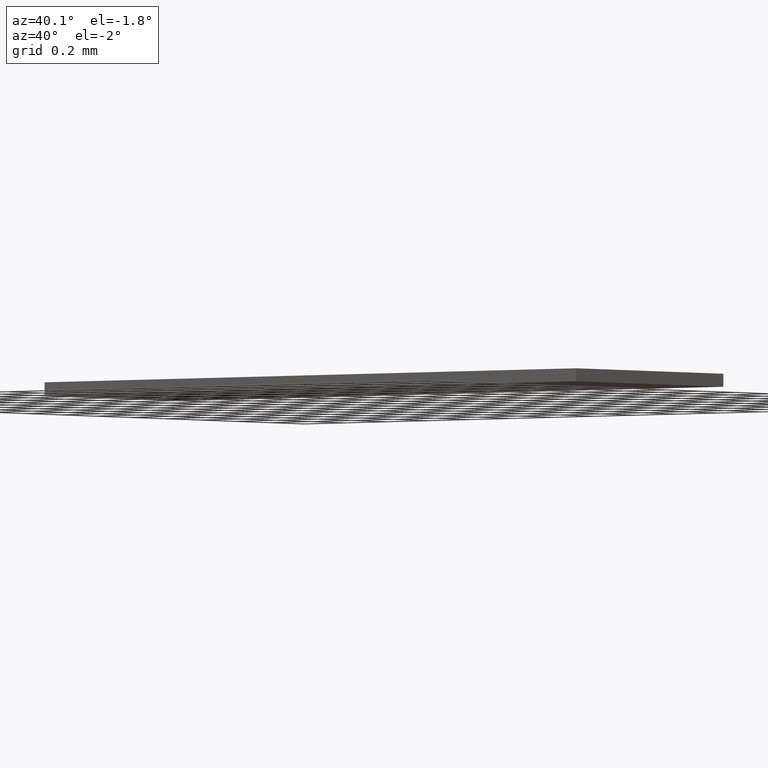
[diagram: clean part render]
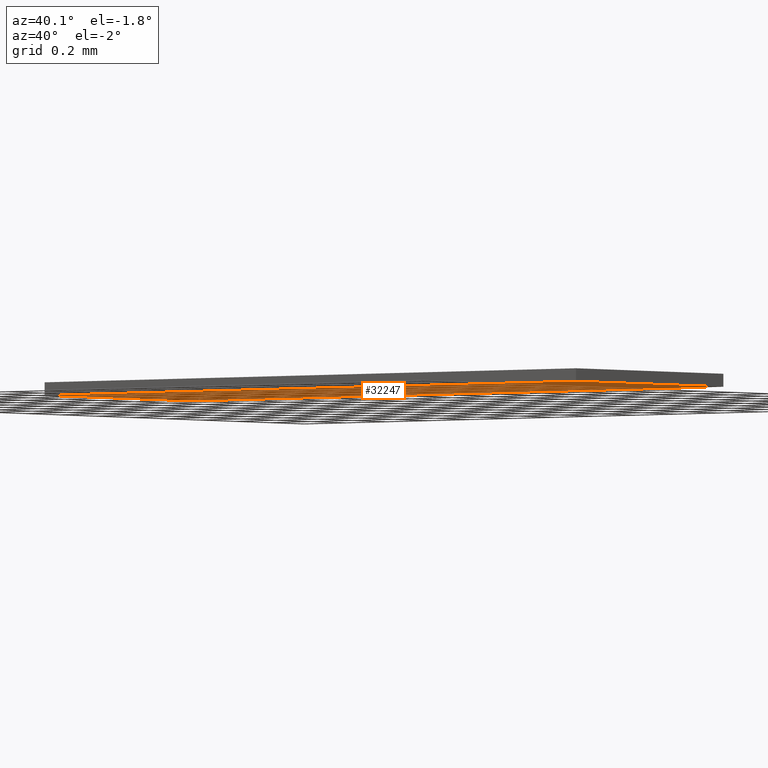
[diagram: same view with one face highlighted and labeled with its STEP entity id]
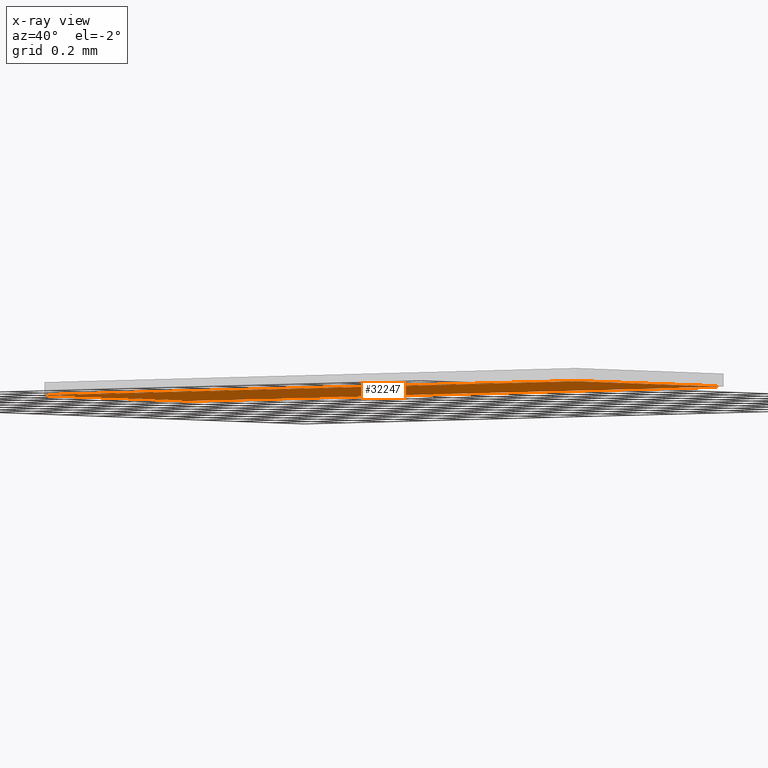
[diagram: x-ray of the same camera — body ghosted, the highlighted face saturated]
A machine part, auxiliary view. The second image highlights one B-rep face of the part: STEP entity #32247.
The next image is the same camera in x-ray: the body ghosted, the highlighted face saturated — about 0% of this face is hidden behind the body in this view.
In plain terms, the highlighted planar face has unit normal (0, 0, 1).
Its self-contained STEP definition (entity closure, byte-faithful):
#30612=CARTESIAN_POINT('',(0.0,0.0,0.0));
#30613=VERTEX_POINT('',#30612);
#30620=CARTESIAN_POINT('',(0.100984251968504,0.0,0.0));
#30621=VERTEX_POINT('',#30620);
#30622=CARTESIAN_POINT('',(0.0,0.0,0.0));
#30623=DIRECTION('',(1.0,0.0,0.0));
#30624=VECTOR('',#30623,0.100984251968504);
#30625=LINE('',#30622,#30624);
#30626=EDGE_CURVE('',#30613,#30621,#30625,.T.);
#30643=CARTESIAN_POINT('',(1.298470E-016,0.033267716535433,0.0));
#30644=VERTEX_POINT('',#30643);
#30651=CARTESIAN_POINT('',(1.298470E-016,0.033267716535433,0.0));
#30652=DIRECTION('',(0.0,-1.0,0.0));
#30653=VECTOR('',#30652,0.033267716535433);
#30654=LINE('',#30651,#30653);
#30655=EDGE_CURVE('',#30644,#30613,#30654,.T.);
#32201=CARTESIAN_POINT('',(0.100984251968504,0.033267716535433,0.0));
#32202=VERTEX_POINT('',#32201);
#32209=CARTESIAN_POINT('',(0.100984251968504,0.033267716535433,0.0));
#32210=DIRECTION('',(-1.0,0.0,0.0));
#32211=VECTOR('',#32210,0.100984251968504);
#32212=LINE('',#32209,#32211);
#32213=EDGE_CURVE('',#32202,#30644,#32212,.T.);
#32226=CARTESIAN_POINT('',(0.100984251968504,0.0,0.0));
#32227=DIRECTION('',(0.0,1.0,0.0));
#32228=VECTOR('',#32227,0.033267716535433);
#32229=LINE('',#32226,#32228);
#32230=EDGE_CURVE('',#30621,#32202,#32229,.T.);
#32236=CARTESIAN_POINT('',(0.050492125984252,0.016633858267717,0.0));
#32237=DIRECTION('',(0.0,0.0,1.0));
#32238=DIRECTION('',(1.0,0.0,0.0));
#32239=AXIS2_PLACEMENT_3D('',#32236,#32237,#32238);
#32240=PLANE('',#32239);
#32241=ORIENTED_EDGE('',*,*,#30626,.F.);
#32242=ORIENTED_EDGE('',*,*,#30655,.F.);
#32243=ORIENTED_EDGE('',*,*,#32213,.F.);
#32244=ORIENTED_EDGE('',*,*,#32230,.F.);
#32245=EDGE_LOOP('',(#32241,#32242,#32243,#32244));
#32246=FACE_OUTER_BOUND('',#32245,.T.);
#32247=ADVANCED_FACE('',(#32246),#32240,.F.);